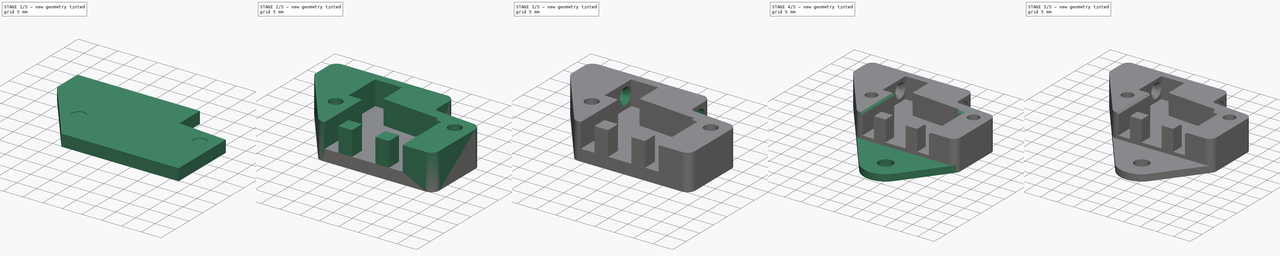
[diagram: build sequence overview — one tinted view per stage of 5, left to right]
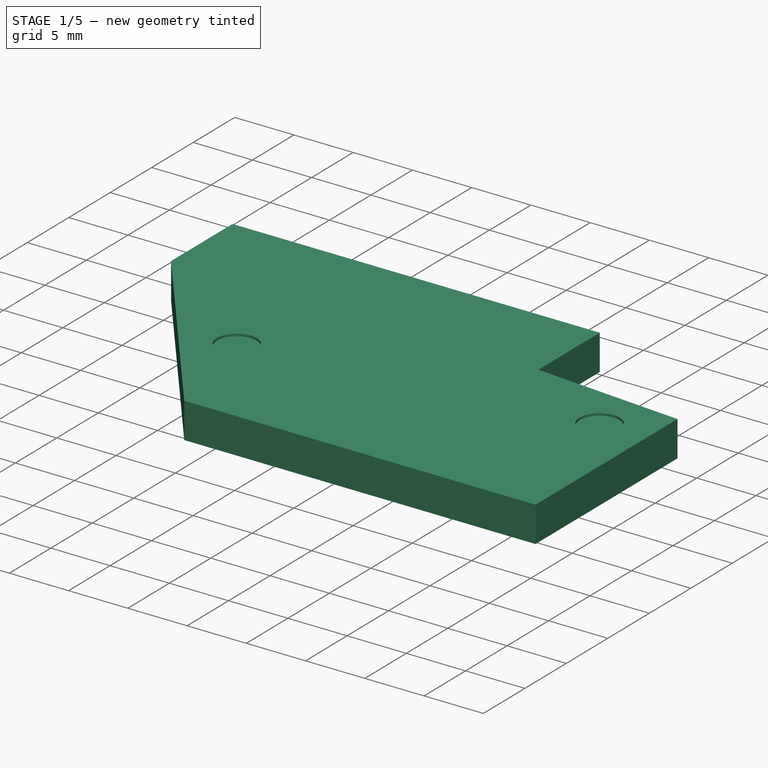
[diagram: stage 1 of 5 — iso view after this stage's code; geometry added in this stage tinted green]
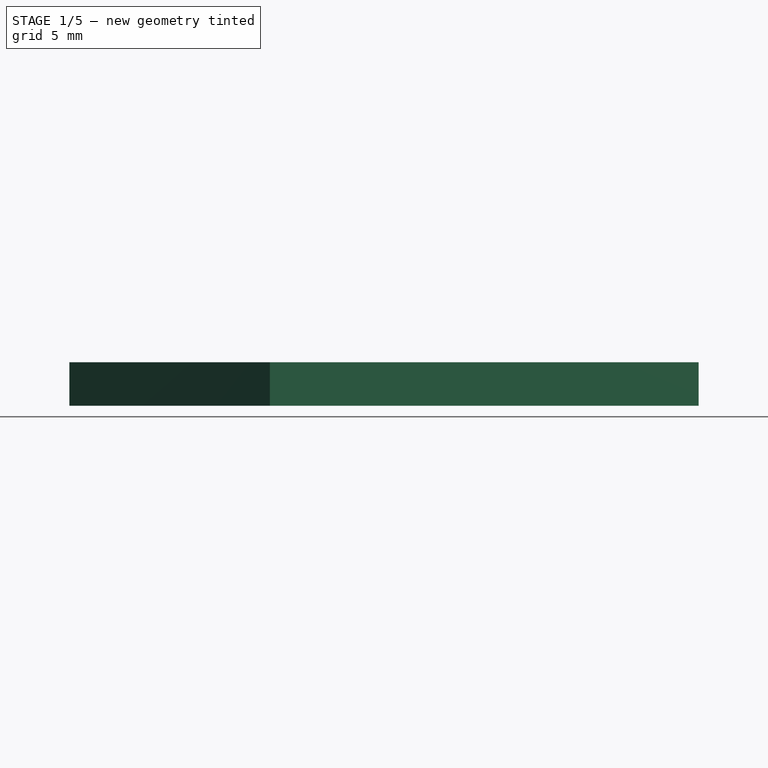
[diagram: stage 1 of 5 — front view after this stage's code; geometry added in this stage tinted green]
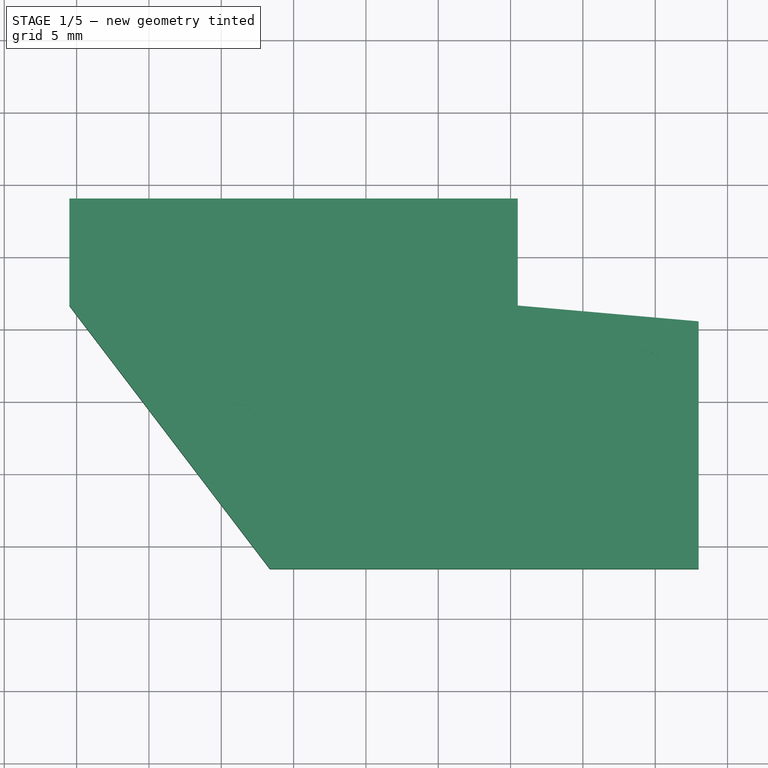
[diagram: stage 1 of 5 — top view after this stage's code; geometry added in this stage tinted green]
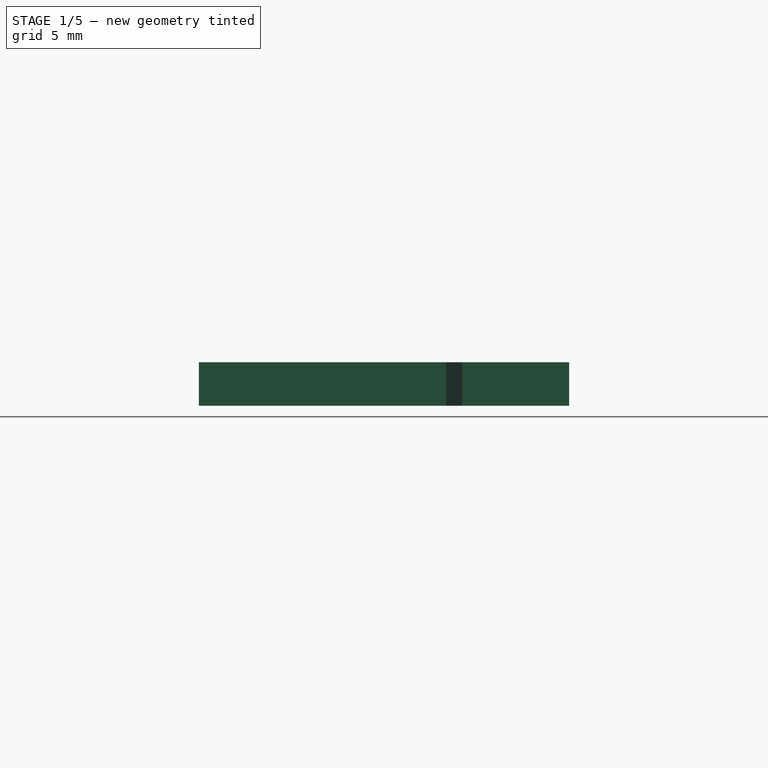
[diagram: stage 1 of 5 — right view after this stage's code; geometry added in this stage tinted green]
FCSTD DOCUMENT  (FreeCAD 0.20R29410 (Git))
Label: FilamentDetector
License: All rights reserved
LicenseURL: http://en.wikipedia.org/wiki/All_rights_reserved
objects: Sketcher::SketchObject×10, PartDesign::Pocket×5, PartDesign::Body×4, PartDesign::Pad×4, PartDesign::Fillet×4, PartDesign::ShapeBinder×3, PartDesign::Plane×2, PartDesign::Chamfer×2, PartDesign::FeatureBase×1
note: 50 computed .brp shape members not serialized (recipe doc carries the construction recipe); baked Part::Feature solids carry a one-line shape summary decoded from their .brp

FEATURE [Sketcher::SketchObject] Sketch  label="Template_XY"
  FullyConstrained = true
  MapMode = 5
  Support = -> [XY_Plane002]
  sketch-geometry (40):
    g0: LineSegment StartX=10 StartY=-7.57053 StartZ=0 EndX=10 EndY=2.67947 EndZ=0
    g1: LineSegment StartX=10 StartY=2.67947 StartZ=0 EndX=8.5 EndY=2.67947 EndZ=0
    g2: LineSegment StartX=8.5 StartY=2.67947 StartZ=0 EndX=8.5 EndY=3.67947 EndZ=0
    g3: LineSegment StartX=8.5 StartY=3.67947 StartZ=0 EndX=-6.5 EndY=4.9918 EndZ=0
    g4: LineSegment StartX=-6.5 StartY=4.9918 StartZ=0 EndX=-6.5 EndY=11.8795 EndZ=0
    g5: LineSegment StartX=-6.5 StartY=11.8795 StartZ=0 EndX=-13.5 EndY=11.8795 EndZ=0
    g6: LineSegment StartX=-13.5 StartY=11.8795 StartZ=0 EndX=-13.5 EndY=2.12947 EndZ=0
    g7: LineSegment StartX=-13.5 StartY=2.12947 StartZ=0 EndX=-10 EndY=2.12947 EndZ=0
    g8: LineSegment StartX=-10 StartY=2.12947 StartZ=0 EndX=-10 EndY=2.02947 EndZ=0
    g9: LineSegment StartX=-10 StartY=2.02947 StartZ=0 EndX=-10 EndY=-7.57053 EndZ=0
    g10: LineSegment StartX=-25.5 StartY=14.0295 StartZ=0 EndX=5.5 EndY=14.0295 EndZ=0
    g11: LineSegment StartX=18 StartY=-11.5705 StartZ=0 EndX=-11.6415 EndY=-11.5705 EndZ=0
    g12: Circle CenterX=-14 CenterY=-1.87053 CenterZ=0 NormalX=0 NormalY=0 NormalZ=1 AngleXU=0 Radius=1.68
    g13: Circle CenterX=14 CenterY=1.87053 CenterZ=0 NormalX=0 NormalY=0 NormalZ=1 AngleXU=0 Radius=1.68
    g14: LineSegment StartX=-25.5 StartY=10.8795 StartZ=0 EndX=5.5 EndY=10.8795 EndZ=0
    g15: LineSegment StartX=-25.5 StartY=8.57947 StartZ=0 EndX=5.5 EndY=8.57947 EndZ=0
    g16: LineSegment StartX=5.5 StartY=11.8295 StartZ=0 EndX=-25.5 EndY=11.8295 EndZ=0
    g17: LineSegment StartX=-25.5 StartY=7.62947 StartZ=0 EndX=5.5 EndY=7.62947 EndZ=0
    g18: LineSegment StartX=-11.6415 StartY=-11.5705 StartZ=0 EndX=-25.5 EndY=6.62947 EndZ=0
    g19: LineSegment StartX=-25.5 StartY=7.62947 StartZ=0 EndX=-25.5 EndY=14.0295 EndZ=0
    g20: GeomPoint X=-22.0734 Y=2.12947 Z=0
    g21: LineSegment StartX=18 StartY=5.53586 StartZ=0 EndX=18 EndY=-11.5705 EndZ=0
    g22: LineSegment StartX=5.5 StartY=14.0295 StartZ=0 EndX=5.5 EndY=7.62947 EndZ=0
    g23: LineSegment StartX=-25.5 StartY=9.72947 StartZ=0 EndX=-13.5 EndY=9.72947 EndZ=0
    g24: LineSegment StartX=-13.5 StartY=9.72947 StartZ=0 EndX=-6.5 EndY=9.72947 EndZ=0
    g25: LineSegment StartX=-6.5 StartY=9.72947 StartZ=0 EndX=5.5 EndY=9.72947 EndZ=0
    g26: LineSegment StartX=5.5 StartY=6.62947 StartZ=0 EndX=18 EndY=5.53586 EndZ=0
    g27: Circle CenterX=-14 CenterY=-1.87053 CenterZ=0 NormalX=0 NormalY=0 NormalZ=1 AngleXU=0 Radius=4
    g28: Circle CenterX=14 CenterY=1.87053 CenterZ=0 NormalX=0 NormalY=0 NormalZ=1 AngleXU=0 Radius=4
    g29: LineSegment StartX=-25.5 StartY=7.62947 StartZ=0 EndX=-25.5 EndY=6.62947 EndZ=0
    g30: LineSegment StartX=5.5 StartY=7.62947 StartZ=0 EndX=5.5 EndY=6.62947 EndZ=0
    g31: LineSegment StartX=-10 StartY=-7.57053 StartZ=0 EndX=-6.5 EndY=-7.57053 EndZ=0
    g32: LineSegment StartX=-6.5 StartY=-7.57053 StartZ=0 EndX=-6.5 EndY=-7.92053 EndZ=0
    g33: LineSegment StartX=-6.5 StartY=-7.92053 StartZ=0 EndX=-3 EndY=-7.92053 EndZ=0
    g34: LineSegment StartX=-3 StartY=-7.92053 StartZ=0 EndX=-3 EndY=-7.57053 EndZ=0
    g35: LineSegment StartX=-3 StartY=-7.57053 StartZ=0 EndX=3 EndY=-7.57053 EndZ=0
    g36: LineSegment StartX=3 StartY=-7.57053 StartZ=0 EndX=3 EndY=-7.92053 EndZ=0
    g37: LineSegment StartX=3 StartY=-7.92053 StartZ=0 EndX=6.5 EndY=-7.92053 EndZ=0
    g38: LineSegment StartX=6.5 StartY=-7.92053 StartZ=0 EndX=6.5 EndY=-7.57053 EndZ=0
    g39: LineSegment StartX=6.5 StartY=-7.57053 StartZ=0 EndX=10 EndY=-7.57053 EndZ=0
  constraints (117):
    c: Vertical(g0)
    c: Coincident(g0,g1)
    c: Horizontal(g1)
    c: Coincident(g1,g2)
    c: Vertical(g2)
    c: Coincident(g2,g3)
    c: Coincident(g3,g4)
    c: Vertical(g4)
    c: Coincident(g4,g5)
    c: Horizontal(g5)
    c: Coincident(g5,g6)
    c: Vertical(g6)
    c: Coincident(g6,g7)
    c: Horizontal(g7)
    c: Coincident(g7,g8)
    c: Vertical(g8)
    c: Vertical(g9)
    c: DistanceY(g0,g0) = 10.25
    c: DistanceY(g0,g2) = 1
    c: DistanceX(g1,g1) = 1.5
    c: DistanceY(g9,g9) = 9.6
    c: Horizontal(g10)
    c: Horizontal(g11)
    c: Equal(g12,g13)
    c: Radius(g12) = 1.68
    c: DistanceY(g9,g23) = 7.7
    c: Horizontal(g14)
    c: Horizontal(g15)
    c: DistanceY(g15,g14) = 2.3
    c: DistanceY(g8,g8) = 0.1
    c: DistanceY(g14,g5) = 1
    c: Angle(g3,g1) = 0.0872665
    c: DistanceX(g6,g9) = 3.5
    c: Horizontal(g16)
    c: Horizontal(g17)
    c: DistanceY(g17,g25) = 2.1
    c: Vertical(g19)
    c: PointOnObject(g23,g19)
    c: PointOnObject(g20,g18)
    c: PointOnObject(g20,g7)
    c: Vertical(g21)
    c: Vertical(g22)
    c: PointOnObject(g25,g22)
    c: PointOnObject(g14,g22)
    c: PointOnObject(g15,g22)
    c: PointOnObject(g16,g22)
    c: Coincident(g23,g24)
    c: Horizontal(g23)
    c: Coincident(g24,g25)
    c: Horizontal(g24)
    c: Horizontal(g25)
    c: PointOnObject(g23,g6)
    c: PointOnObject(g24,g4)
    c: Coincident(g17,g22)
    c: Equal(g23,g25)
    c: Parallel(g26,g3)
    c: Coincident(g27,g12)
    c: Tangent(g18,g27)
    c: Tangent(g7,g27)
    c: Tangent(g27,g9)
    c: Coincident(g28,g13)
    c: Tangent(g0,g28)
    c: Tangent(g26,g28)
    c: Tangent(g21,g28)
    c: Equal(g27,g28)
    c: Coincident(g19,g17)
    c: PointOnObject(g15,g19)
    c: Symmetric(g14,g15,g23)
    c: Symmetric(g16,g17,g23)
    c: DistanceX(g3,g1) = 15
    c: Coincident(g11,g21)
    c: Coincident(g10,g22)
    c: Coincident(g29,g17)
    c: Vertical(g29)
    c: Coincident(g30,g17)
    c: Vertical(g30)
    c: DistanceY(g30,g30) = 1
    c: Coincident(g26,g30)
    c: Equal(g29,g30)
    c: Coincident(g18,g29)
    c: Coincident(g21,g26)
    c: DistanceY(g11,g0) = 4
    c: Coincident(g10,g19)
    c: Symmetric(g12,g13,g-1)
    c: Horizontal(g31)
    c: Coincident(g31,g32)
    c: Vertical(g32)
    c: Coincident(g32,g33)
    c: Horizontal(g33)
    c: Coincident(g33,g34)
    c: Vertical(g34)
    c: Coincident(g34,g35)
    c: Horizontal(g35)
    c: Coincident(g35,g36)
    c: Vertical(g36)
    c: Coincident(g36,g37)
    c: Horizontal(g37)
    c: Coincident(g37,g38)
    c: Vertical(g38)
    c: Coincident(g38,g39)
    c: Horizontal(g39)
    c: DistanceX(g37,g0) = 3.5
    c: Equal(g31,g39)
    c: PointOnObject(g35,g39)
    c: Equal(g33,g37)
    c: Equal(g34,g36)
    c: Coincident(g11,g18)
    c: Coincident(g39,g0)
    c: Coincident(g31,g9)
    c: DistanceY(g37,g0) = 0.35
    c: PointOnObject(g31,g35)
    c: DistanceX(g9,g0) = 20
    c: Coincident(g8,g9)
    c: Radius(g27) = 4
    c: Equal(g39,g37)
    c: DistanceY(g16,g10) = 2.2
    c: DistanceX(g4,g10) = 12
FEATURE [PartDesign::Body] Body002  label="Template"
  Group = -> [Sketch]
  Origin = -> Origin002
FEATURE [PartDesign::ShapeBinder] ShapeBinder
  Support = -> [Sketch]
  TraceSupport = false
FEATURE [Sketcher::SketchObject] Sketch001  label="SB_Base"
  ExternalGeometry = -> [ShapeBinder]
  FullyConstrained = true
  MapMode = 5
  Support = -> [XY_Plane]
  sketch-geometry (7):
    g0: LineSegment StartX=-25.5 StartY=14.0295 StartZ=0 EndX=-25.5 EndY=6.62947 EndZ=0
    g1: LineSegment StartX=-25.5 StartY=6.62947 StartZ=0 EndX=-11.6415 EndY=-11.5705 EndZ=0
    g2: LineSegment StartX=-11.6415 StartY=-11.5705 StartZ=0 EndX=18 EndY=-11.5705 EndZ=0
    g3: LineSegment StartX=18 StartY=-11.5705 StartZ=0 EndX=18 EndY=5.53586 EndZ=0
    g4: LineSegment StartX=18 StartY=5.53586 StartZ=0 EndX=5.5 EndY=6.62947 EndZ=0
    g5: LineSegment StartX=5.5 StartY=6.62947 StartZ=0 EndX=5.5 EndY=14.0295 EndZ=0
    g6: LineSegment StartX=5.5 StartY=14.0295 StartZ=0 EndX=-25.5 EndY=14.0295 EndZ=0
  constraints (14):
    c: Coincident(g0,g1)
    c: Coincident(g1,g2)
    c: Coincident(g2,g3)
    c: Coincident(g3,g4)
    c: Coincident(g4,g5)
    c: Coincident(g5,g6)
    c: Coincident(g6,g0)
    c: Coincident(g5,g-3)
    c: Coincident(g4,g-6)
    c: Coincident(g3,g-6)
    c: Coincident(g2,g-5)
    c: Coincident(g1,g-4)
    c: Coincident(g0,g-4)
    c: Coincident(g0,g-3)
FEATURE [PartDesign::Pad] Pad  label="SB_Base_"
  Direction = (0,0,1)
  Length = 3
  Length2 = 100
  Profile = -> Sketch001
  ReferenceAxis = -> Sketch001 [N_Axis]
  Type = 0
FEATURE [Sketcher::SketchObject] Sketch003  label="SB_Filament"
  ExternalGeometry = -> [ShapeBinder]
  FullyConstrained = true
  MapMode = 5
  Placement = pos=(0,0,0) rot=(0.57735,0.57735,0.57735;2.0944rad)
  Support = -> [YZ_Plane]
  expr: Constraints[6] = <<SB_Bay_>>.Length / 2 + <<SB_Base_>>.Length
  sketch-geometry (3):
    g0: Circle CenterX=9.72947 CenterY=6.1 CenterZ=0 NormalX=0 NormalY=0 NormalZ=1 AngleXU=0 Radius=1.15
    g1: LineSegment StartX=9.72947 StartY=3e-15 StartZ=0 EndX=9.72947 EndY=6.1 EndZ=0
    g2: LineSegment StartX=10.8795 StartY=6.1 StartZ=0 EndX=10.8795 EndY=6.2e-15 EndZ=0
  constraints (7):
    c: Coincident(g2,g-4)
    c: Coincident(g1,g-3)
    c: Vertical(g1)
    c: Vertical(g2)
    c: Tangent(g2,g0) = 1.5708
    c: Coincident(g0,g1)
    c: DistanceY(g1,g0) = 6.1
FEATURE [Sketcher::SketchObject] Sketch004  label="SB_Bay"
  AttachmentOffset = pos=(0,0,3) rot=(0,0,1;0rad)
  ExternalGeometry = -> [ShapeBinder]
  FullyConstrained = true
  MapMode = 5
  Placement = pos=(0,0,3) rot=(0,0,1;0rad)
  Support = -> [XY_Plane]
  expr: .AttachmentOffset.Base.z = <<SB_Base>>.AttachmentOffset.Base.z + <<SB_Base_>>.Length
  sketch-geometry (27):
    g0: LineSegment StartX=-25.5 StartY=14.0295 StartZ=0 EndX=-25.5 EndY=6.62947 EndZ=0
    g1: LineSegment StartX=-25.5 StartY=6.62947 StartZ=0 EndX=-11.6415 EndY=-11.5705 EndZ=0
    g2: LineSegment StartX=-10 StartY=2.12947 StartZ=0 EndX=-13.5 EndY=2.12947 EndZ=0
    g3: LineSegment StartX=-13.5 StartY=2.12947 StartZ=0 EndX=-13.5 EndY=11.8795 EndZ=0
    g4: LineSegment StartX=-13.5 StartY=11.8795 StartZ=0 EndX=-6.5 EndY=11.8795 EndZ=0
    g5: LineSegment StartX=-6.5 StartY=11.8795 StartZ=0 EndX=-6.5 EndY=4.9918 EndZ=0
    g6: LineSegment StartX=-6.5 StartY=4.9918 StartZ=0 EndX=8.5 EndY=3.67947 EndZ=0
    g7: LineSegment StartX=8.5 StartY=3.67947 StartZ=0 EndX=8.5 EndY=2.67947 EndZ=0
    g8: LineSegment StartX=8.5 StartY=2.67947 StartZ=0 EndX=10 EndY=2.67947 EndZ=0
    g9: LineSegment StartX=10 StartY=2.67947 StartZ=0 EndX=10 EndY=-11.5705 EndZ=0
    g10: LineSegment StartX=10 StartY=-11.5705 StartZ=0 EndX=18 EndY=-11.5705 EndZ=0
    g11: LineSegment StartX=18 StartY=-11.5705 StartZ=0 EndX=18 EndY=5.53586 EndZ=0
    g12: LineSegment StartX=18 StartY=5.53586 StartZ=0 EndX=5.5 EndY=6.62947 EndZ=0
    g13: LineSegment StartX=5.5 StartY=6.62947 StartZ=0 EndX=5.5 EndY=14.0295 EndZ=0
    g14: LineSegment StartX=5.5 StartY=14.0295 StartZ=0 EndX=-25.5 EndY=14.0295 EndZ=0
    g15: Circle CenterX=-14 CenterY=-1.87053 CenterZ=0 NormalX=0 NormalY=0 NormalZ=1 AngleXU=0 Radius=1.68
    g16: Circle CenterX=14 CenterY=1.87053 CenterZ=0 NormalX=0 NormalY=0 NormalZ=1 AngleXU=0 Radius=1.68
    g17: LineSegment StartX=-6.5 StartY=-7.92053 StartZ=0 EndX=-6.5 EndY=-11.5705 EndZ=0
    g18: LineSegment StartX=-6.5 StartY=-11.5705 StartZ=0 EndX=-3 EndY=-11.5705 EndZ=0
    g19: LineSegment StartX=-3 StartY=-11.5705 StartZ=0 EndX=-3 EndY=-7.92053 EndZ=0
    g20: LineSegment StartX=-3 StartY=-7.92053 StartZ=0 EndX=-6.5 EndY=-7.92053 EndZ=0
    g21: LineSegment StartX=3 StartY=-7.92053 StartZ=0 EndX=3 EndY=-11.5705 EndZ=0
    g22: LineSegment StartX=3 StartY=-11.5705 StartZ=0 EndX=6.5 EndY=-11.5705 EndZ=0
    g23: LineSegment StartX=6.5 StartY=-11.5705 StartZ=0 EndX=6.5 EndY=-7.92053 EndZ=0
    g24: LineSegment StartX=6.5 StartY=-7.92053 StartZ=0 EndX=3 EndY=-7.92053 EndZ=0
    g25: LineSegment StartX=-10 StartY=2.12947 StartZ=0 EndX=-10 EndY=-11.5705 EndZ=0
    g26: LineSegment StartX=-10 StartY=-11.5705 StartZ=0 EndX=-11.6415 EndY=-11.5705 EndZ=0
  constraints (60):
    c: Coincident(g0,g1)
    c: Coincident(g2,g3)
    c: Coincident(g3,g4)
    c: Coincident(g4,g5)
    c: Coincident(g5,g6)
    c: Coincident(g6,g7)
    c: Coincident(g7,g8)
    c: Coincident(g8,g9)
    c: Coincident(g10,g11)
    c: Coincident(g11,g12)
    c: Coincident(g12,g13)
    c: Coincident(g13,g14)
    c: Coincident(g14,g0)
    c: Coincident(g9,g10)
    c: Coincident(g13,g-5)
    c: Coincident(g12,g-8)
    c: Coincident(g11,g-8)
    c: Coincident(g10,g-3)
    c: Coincident(g1,g-3)
    c: Coincident(g0,g-4)
    c: Coincident(g0,g-5)
    c: Equal(g-6,g15)
    c: Equal(g-7,g16)
    c: Coincident(g-7,g16)
    c: Coincident(g-6,g15)
    c: PointOnObject(g9,g-3)
    c: Coincident(g-12,g8)
    c: PointOnObject(g-12,g9)
    c: Coincident(g7,g-11)
    c: Coincident(g6,g-11)
    c: Coincident(g5,g-10)
    c: Coincident(g4,g-10)
    c: Coincident(g3,g-9)
    c: Coincident(g2,g-9)
    c: Coincident(g-14,g17)
    c: PointOnObject(g17,g-3)
    c: Vertical(g17)
    c: Coincident(g17,g18)
    c: PointOnObject(g18,g-3)
    c: Coincident(g18,g19)
    c: Coincident(g19,g-14)
    c: Vertical(g19)
    c: Coincident(g19,g20)
    c: Coincident(g20,g17)
    c: Coincident(g-15,g21)
    c: PointOnObject(g21,g-3)
    c: Vertical(g21)
    c: Coincident(g21,g22)
    c: PointOnObject(g22,g-3)
    c: Coincident(g22,g23)
    c: Coincident(g23,g-15)
    c: Coincident(g23,g24)
    c: Coincident(g24,g21)
    c: Vertical(g23)
    c: Coincident(g25,g2)
    c: PointOnObject(g25,g-3)
    c: Coincident(g26,g25)
    c: Coincident(g26,g1)
    c: Coincident(g2,g-13)
    c: PointOnObject(g-13,g25)
FEATURE [PartDesign::Plane] DatumPlane
  Length = 60
  MapMode = 1
  Placement = pos=(5.5,9.72947,0) rot=(0.57735,-0.57735,-0.57735;2.0944rad)
  ResizeMode = 0
  Support = -> [ShapeBinder]
  Width = 60
FEATURE [Sketcher::SketchObject] Sketch005  label="SB_Tube_In"
  ExternalGeometry = -> [ShapeBinder]
  FullyConstrained = true
  MapMode = 5
  Placement = pos=(5.5,9.72947,0) rot=(0.57735,-0.57735,-0.57735;2.0944rad)
  Support = -> [DatumPlane]
  expr: Constraints[1] = <<SB_Bay_>>.Length / 2 + <<SB_Base_>>.Length
  sketch-geometry (2):
    g0: Circle CenterX=-1.5672e-12 CenterY=6.1 CenterZ=0 NormalX=0 NormalY=0 NormalZ=1 AngleXU=0 Radius=2.1
    g1: LineSegment StartX=-2.1 StartY=0 StartZ=0 EndX=-2.1 EndY=6.1 EndZ=0
  constraints (5):
    c: PointOnObject(g0,g-2)
    c: DistanceY(g-1,g0) = 6.1
    c: Vertical(g1)
    c: Tangent(g1,g0) = 1.5708
    c: Coincident(g1,g-3)
FEATURE [PartDesign::Plane] DatumPlane001
  Length = 60
  MapMode = 7
  Placement = pos=(-25.5,9.72947,0) rot=(0.57735,-0.57735,-0.57735;2.0944rad)
  ResizeMode = 0
  Support = -> [ShapeBinder]
  Width = 60
FEATURE [Sketcher::SketchObject] Sketch006  label="SB_Tube_Out"
  ExternalGeometry = -> [ShapeBinder]
  FullyConstrained = true
  MapMode = 5
  Placement = pos=(-25.5,9.72947,0) rot=(0.57735,-0.57735,-0.57735;2.0944rad)
  Support = -> [DatumPlane001]
  expr: Constraints[1] = <<SB_Bay_>>.Length / 2 + <<SB_Base_>>.Length
  sketch-geometry (2):
    g0: Circle CenterX=-1.5672e-12 CenterY=6.1 CenterZ=0 NormalX=0 NormalY=0 NormalZ=1 AngleXU=0 Radius=2.1
    g1: LineSegment StartX=-2.1 StartY=0 StartZ=0 EndX=-2.1 EndY=6.1 EndZ=0
  constraints (5):
    c: PointOnObject(g0,g-2)
    c: DistanceY(g-1,g0) = 6.1
    c: Vertical(g1)
    c: Tangent(g1,g0) = 1.5708
    c: Coincident(g1,g-3)
FEATURE [Sketcher::SketchObject] Sketch008  label="SB_Nuts"
  ExternalGeometry = -> [ShapeBinder]
  FullyConstrained = true
  MapMode = 5
  Support = -> [XY_Plane]
  sketch-geometry (14):
    g0: LineSegment StartX=10.6 StartY=1.87053 StartZ=0 EndX=12.3 EndY=-1.07395 EndZ=0
    g1: LineSegment StartX=12.3 StartY=-1.07395 StartZ=0 EndX=15.7 EndY=-1.07395 EndZ=0
    g2: LineSegment StartX=15.7 StartY=-1.07395 StartZ=0 EndX=17.4 EndY=1.87053 EndZ=0
    g3: LineSegment StartX=17.4 StartY=1.87053 StartZ=0 EndX=15.7 EndY=4.81502 EndZ=0
    g4: LineSegment StartX=15.7 StartY=4.81502 StartZ=0 EndX=12.3 EndY=4.81502 EndZ=0
    g5: LineSegment StartX=12.3 StartY=4.81502 StartZ=0 EndX=10.6 EndY=1.87053 EndZ=0
    g6: Circle CenterX=14 CenterY=1.87053 CenterZ=0 NormalX=0 NormalY=0 NormalZ=1 AngleXU=0 Radius=3.4
    g7: LineSegment StartX=-12.3 StartY=1.07395 StartZ=0 EndX=-15.7 EndY=1.07395 EndZ=0
    g8: LineSegment StartX=-15.7 StartY=1.07395 StartZ=0 EndX=-17.4 EndY=-1.87053 EndZ=0
    g9: LineSegment StartX=-17.4 StartY=-1.87053 StartZ=0 EndX=-15.7 EndY=-4.81502 EndZ=0
    g10: LineSegment StartX=-15.7 StartY=-4.81502 StartZ=0 EndX=-12.3 EndY=-4.81502 EndZ=0
    g11: LineSegment StartX=-12.3 StartY=-4.81502 StartZ=0 EndX=-10.6 EndY=-1.87053 EndZ=0
    g12: LineSegment StartX=-10.6 StartY=-1.87053 StartZ=0 EndX=-12.3 EndY=1.07395 EndZ=0
    g13: Circle CenterX=-14 CenterY=-1.87053 CenterZ=0 NormalX=0 NormalY=0 NormalZ=1 AngleXU=0 Radius=3.4
  constraints (32):
    c: Coincident(g0,g1)
    c: Coincident(g1,g2)
    c: Coincident(g2,g3)
    c: Coincident(g3,g4)
    c: Coincident(g4,g5)
    c: Coincident(g5,g0)
    c: Equal(g0, g1-g5) x5
    c: PointOnObject(g0,g6)
    c: PointOnObject(g1,g6)
    c: PointOnObject(g2,g6)
    c: PointOnObject(g3,g6)
    c: PointOnObject(g4,g6)
    c: PointOnObject(g5,g6)
    c: Radius(g6) = 3.4
    c: Coincident(g7,g8)
    c: Coincident(g8,g9)
    c: Coincident(g9,g10)
    c: Coincident(g10,g11)
    c: Coincident(g11,g12)
    c: Coincident(g12,g7)
    c: Equal(g7, g8-g12) x5
    c: PointOnObject(g7,g13)
    c: PointOnObject(g8,g13)
    c: PointOnObject(g9,g13)
    c: PointOnObject(g10,g13)
    c: PointOnObject(g11,g13)
    c: PointOnObject(g12,g13)
    c: Equal(g13,g6)
    c: Horizontal(g7)
    c: Horizontal(g4)
    c: Coincident(g6,g-4)
    c: Coincident(g13,g-3)
FEATURE [PartDesign::Pocket] Pocket003  label="SB_Nuts_"
  BaseFeature = -> Pad
  Direction = (0,0,-1)
  Length = 2.6
  Length2 = 5
  Profile = -> Sketch008
  ReferenceAxis = -> Sketch008 [N_Axis]
  Reversed = true
  Type = 0
  expr: Length = <<SB_Base_>>.Length - 0.4mm
FEATURE [Sketcher::SketchObject] Sketch009  label="SB_Screws"
  AttachmentOffset = pos=(0,0,3) rot=(0,0,1;0rad)
  ExternalGeometry = -> [ShapeBinder]
  FullyConstrained = true
  MapMode = 5
  Placement = pos=(0,0,3) rot=(0,0,1;0rad)
  Support = -> [XY_Plane]
  expr: .AttachmentOffset.Base.z = <<SB_Base>>.AttachmentOffset.Base.z + <<SB_Base_>>.Length
  sketch-geometry (2):
    g0: Circle CenterX=14 CenterY=1.87053 CenterZ=0 NormalX=0 NormalY=0 NormalZ=1 AngleXU=0 Radius=1.68
    g1: Circle CenterX=-14 CenterY=-1.87053 CenterZ=0 NormalX=0 NormalY=0 NormalZ=1 AngleXU=0 Radius=1.68
  constraints (4):
    c: Equal(g-4,g1)
    c: Equal(g-3,g0)
    c: Coincident(g-3,g0)
    c: Coincident(g-4,g1)
FEATURE [PartDesign::Pocket] Pocket004  label="SB_Screws_"
  BaseFeature = -> Pocket003
  Direction = (0,0,-1)
  Length = 0.2
  Length2 = 5
  Profile = -> Sketch009
  ReferenceAxis = -> Sketch009 [N_Axis]
  Type = 0
  expr: Length = <<SB_Base_>>.Length - <<SB_Nuts_>>.Length - 0.2mm
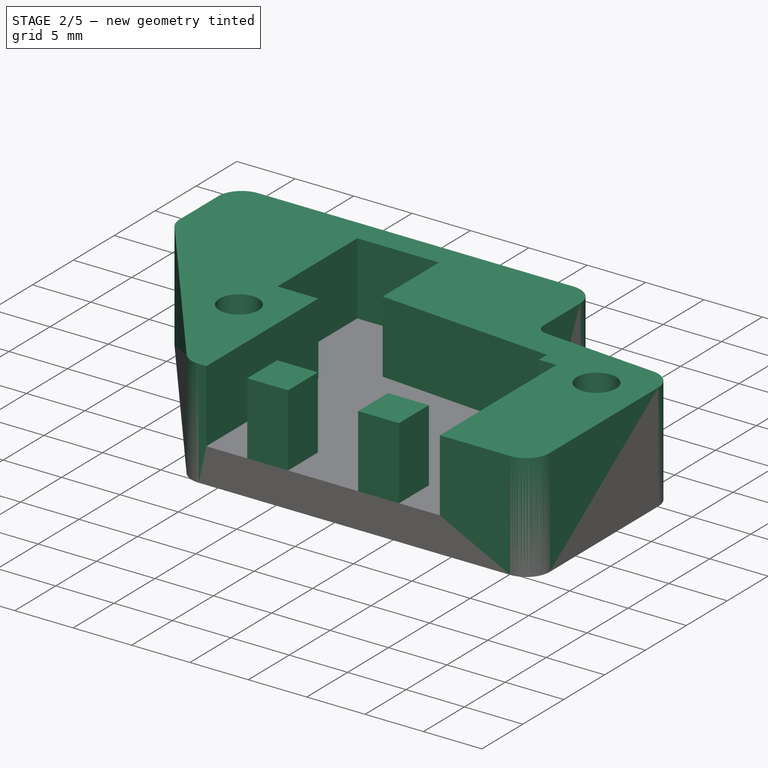
[diagram: stage 2 of 5 — iso view after this stage's code; geometry added in this stage tinted green]
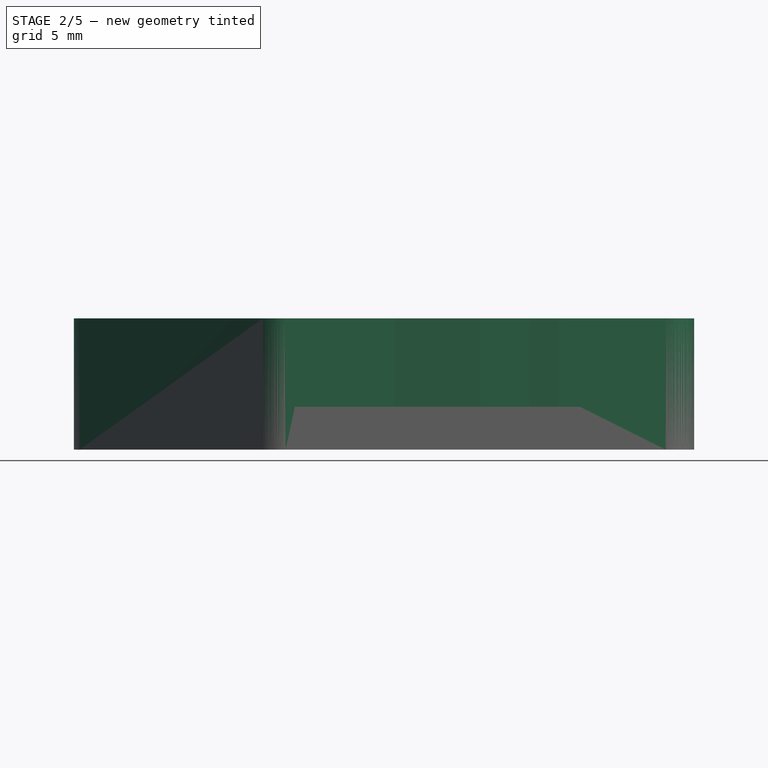
[diagram: stage 2 of 5 — front view after this stage's code; geometry added in this stage tinted green]
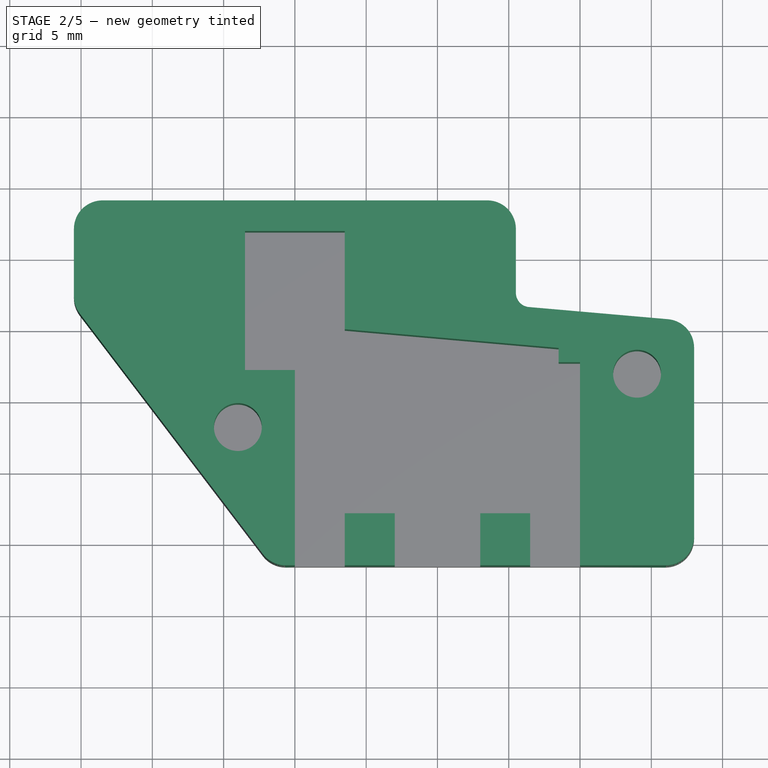
[diagram: stage 2 of 5 — top view after this stage's code; geometry added in this stage tinted green]
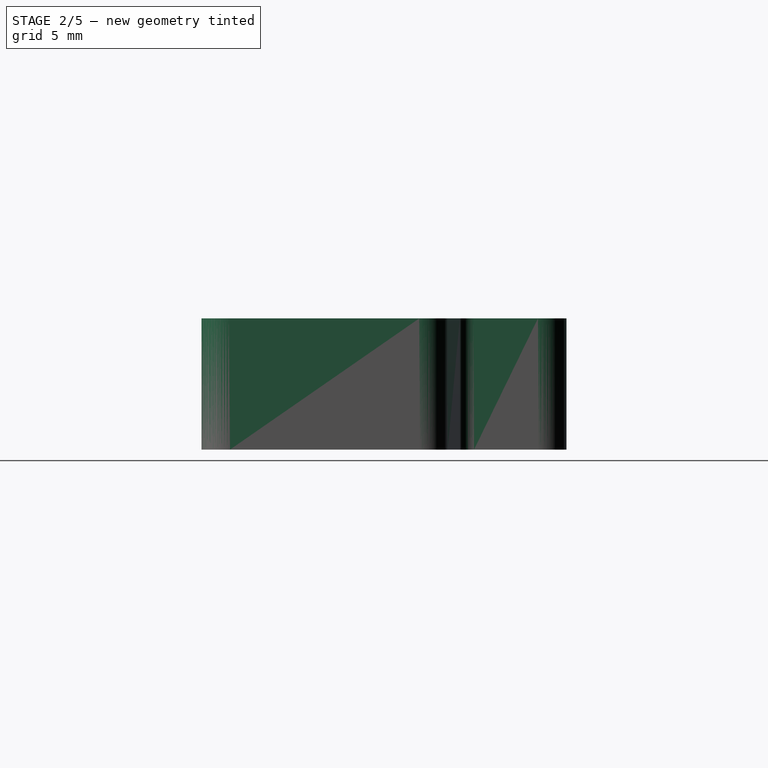
[diagram: stage 2 of 5 — right view after this stage's code; geometry added in this stage tinted green]
FEATURE [PartDesign::Pad] Pad001  label="SB_Bay_"
  BaseFeature = -> Pocket004
  Direction = (0,0,1)
  Length = 6.2
  Length2 = 100
  Profile = -> Sketch004
  Refine = true
  Type = 0
FEATURE [PartDesign::Fillet] Fillet
  Base = -> Pad001 [Edge44,Edge46,Edge110,Edge112,Edge109,Edge113]
  BaseFeature = -> Pad001
  Radius = 2
  SupportTransform = false
  UseAllEdges = false
FEATURE [PartDesign::Fillet] Fillet001
  Base = -> Fillet [Edge41]
  BaseFeature = -> Fillet
  Radius = 1
  SupportTransform = false
  UseAllEdges = false
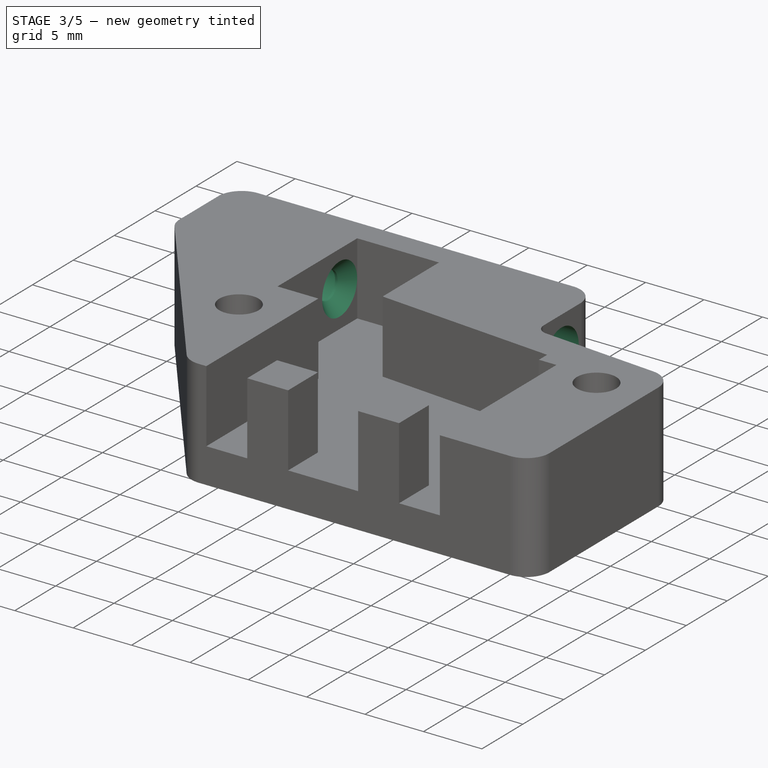
[diagram: stage 3 of 5 — iso view after this stage's code; geometry added in this stage tinted green]
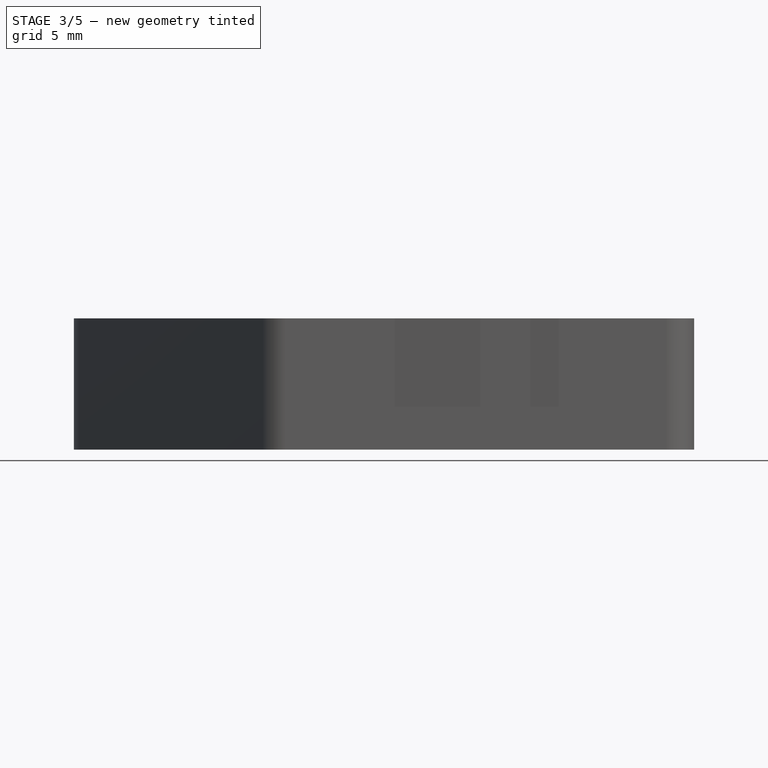
[diagram: stage 3 of 5 — front view after this stage's code; geometry added in this stage tinted green]
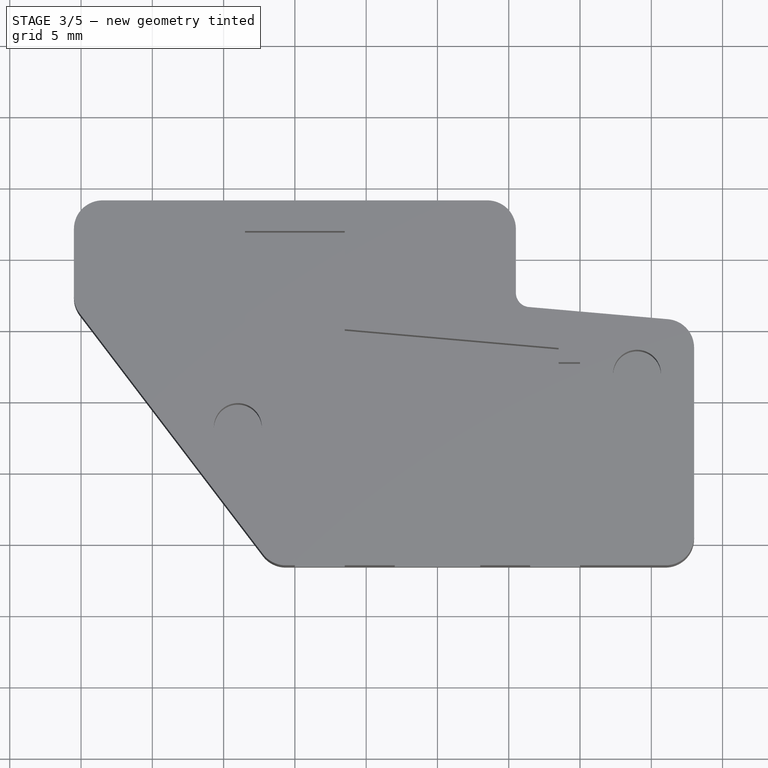
[diagram: stage 3 of 5 — top view after this stage's code; geometry added in this stage tinted green]
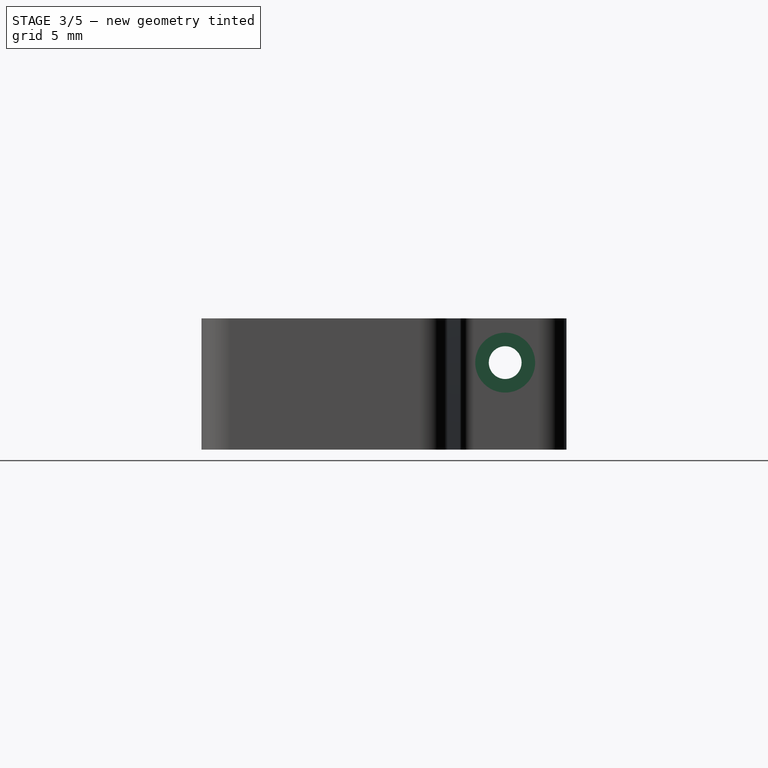
[diagram: stage 3 of 5 — right view after this stage's code; geometry added in this stage tinted green]
FEATURE [PartDesign::Pocket] Pocket  label="SB_Filament_"
  BaseFeature = -> Fillet001
  Direction = (-1,2e-16,-3e-16)
  Length = 5
  Length2 = 100
  Midplane = true
  Profile = -> Sketch003
  Type = 1
FEATURE [PartDesign::Chamfer] Chamfer
  Angle = 24
  Base = -> Pocket [Edge105,Edge106]
  BaseFeature = -> Pocket
  ChamferType = 0
  FlipDirection = false
  Size = 0.99
  Size2 = 2
  SupportTransform = false
  UseAllEdges = false
FEATURE [PartDesign::Pocket] Pocket001  label="SB_Tube_In_"
  BaseFeature = -> Chamfer
  Direction = (1,0,0)
  Length = 10.8
  Length2 = 100
  Profile = -> Sketch005
  Reversed = true
  Type = 0
FEATURE [PartDesign::Pocket] Pocket002  label="SB_Tube_Out_"
  BaseFeature = -> Pocket001
  Direction = (1,0,0)
  Length = 10.8
  Length2 = 100
  Profile = -> Sketch006
  Type = 0
  expr: Length = <<SB_Tube_In_>>.Length
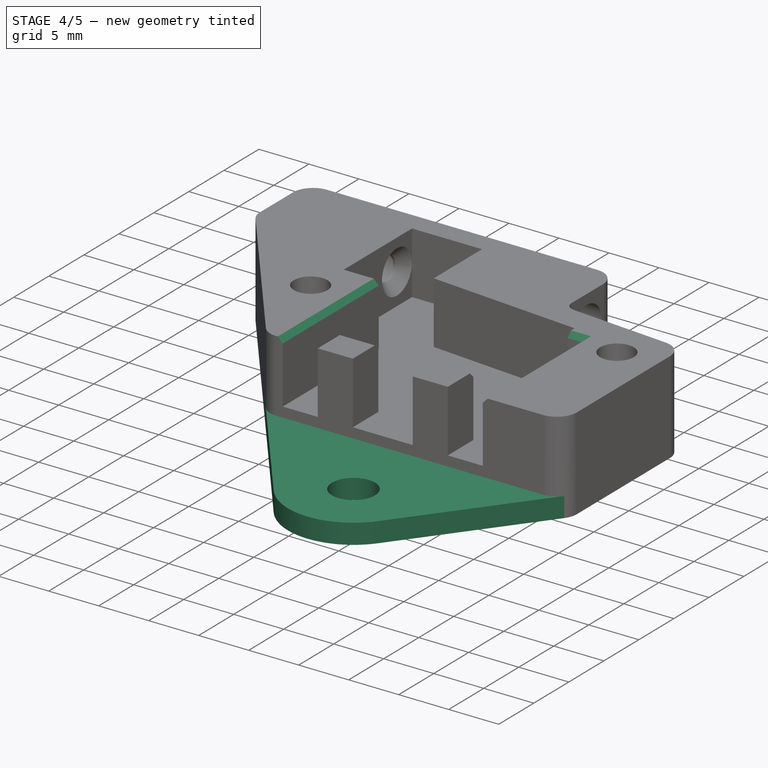
[diagram: stage 4 of 5 — iso view after this stage's code; geometry added in this stage tinted green]
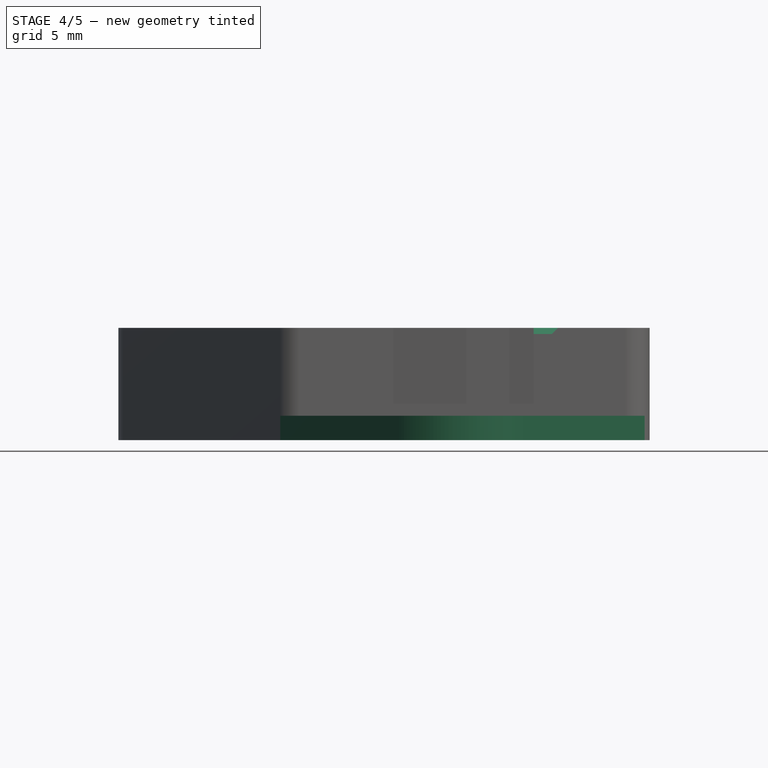
[diagram: stage 4 of 5 — front view after this stage's code; geometry added in this stage tinted green]
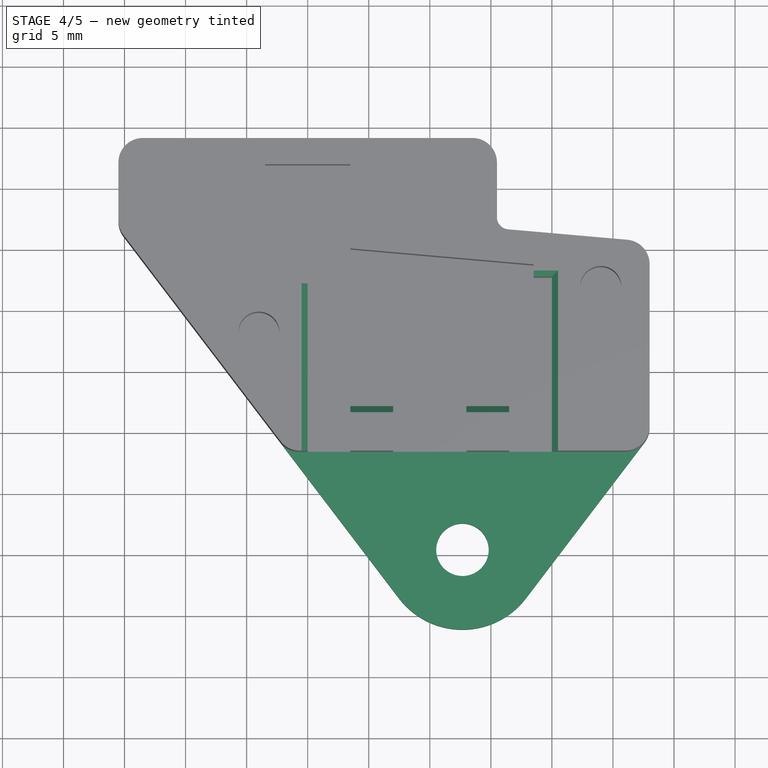
[diagram: stage 4 of 5 — top view after this stage's code; geometry added in this stage tinted green]
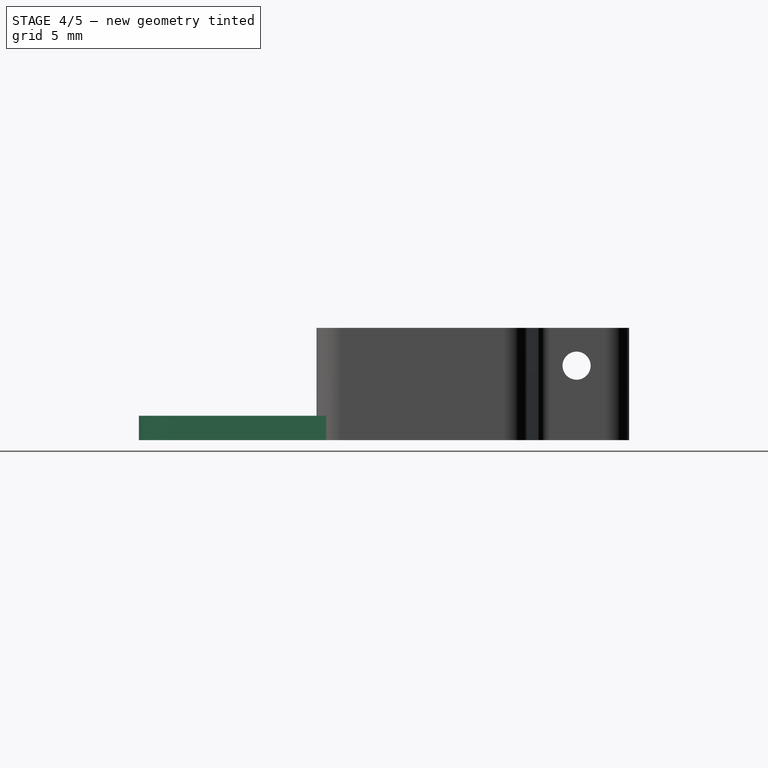
[diagram: stage 4 of 5 — right view after this stage's code; geometry added in this stage tinted green]
FEATURE [PartDesign::Chamfer] Chamfer001
  Angle = 45
  Base = -> Pocket002 [Edge54,Edge45,Edge47,Edge105,Edge110]
  BaseFeature = -> Pocket002
  ChamferType = 0
  FlipDirection = false
  Size = 0.5
  Size2 = 1
  SupportTransform = false
  UseAllEdges = false
FEATURE [PartDesign::Body] Body001  label="Lid"
  Group = -> [ShapeBinder001,Sketch007,Pad002,Fillet002,Fillet003]
  Origin = -> Origin001
  Tip = -> Fillet003
FEATURE [PartDesign::FeatureBase] Clone
  BaseFeature = -> Body
FEATURE [PartDesign::ShapeBinder] ShapeBinder002
  Support = -> [Sketch]
  TraceSupport = false
FEATURE [Sketcher::SketchObject] Sketch010
  ExternalGeometry = -> [ShapeBinder002]
  FullyConstrained = true
  MapMode = 5
  Support = -> [XY_Plane003]
  sketch-geometry (7):
    g0: ArcOfCircle CenterX=16 CenterY=-9.57053 CenterZ=0 NormalX=0 NormalY=0 NormalZ=1 AngleXU=0 Radius=2 StartAngle=4.71239 EndAngle=6.28319
    g1: ArcOfCircle CenterX=-10.6506 CenterY=-9.57053 CenterZ=0 NormalX=0 NormalY=0 NormalZ=1 AngleXU=0 Radius=2 StartAngle=3.79239 EndAngle=4.71239
    g2: LineSegment StartX=-12.2418 StartY=-10.7822 StartZ=0 EndX=-2.53133 EndY=-23.5347 EndZ=0
    g3: LineSegment StartX=7.88073 StartY=-23.5347 StartZ=0 EndX=17.5912 EndY=-10.7822 EndZ=0
    g4: LineSegment StartX=-12.2418 StartY=-10.7822 StartZ=0 EndX=17.5912 EndY=-10.7822 EndZ=0
    g5: ArcOfCircle CenterX=2.6747 CenterY=-19.5705 CenterZ=0 NormalX=0 NormalY=0 NormalZ=1 AngleXU=0 Radius=6.54349 StartAngle=3.79239 EndAngle=5.63239
    g6: Circle CenterX=2.6747 CenterY=-19.5705 CenterZ=0 NormalX=0 NormalY=0 NormalZ=1 AngleXU=0 Radius=2.15
  constraints (18):
    c: Radius(g0) = 2
    c: Tangent(g0,g-3) = 1.5708
    c: Tangent(g0,g-4) = 1.5708
    c: Equal(g0,g1)
    c: Tangent(g1,g-5) = 1.5708
    c: Tangent(g1,g-3) = 1.5708
    c: Coincident(g2,g1)
    c: Tangent(g3,g0) = -1.5708
    c: Parallel(g2,g-5)
    c: Equal(g3,g2)
    c: Coincident(g4,g1)
    c: Coincident(g4,g3)
    c: Tangent(g2,g5) = -1.5708
    c: Tangent(g3,g5) = -1.5708
    c: Coincident(g6,g5)
    c: Radius(g6) = 2.15
    c: DistanceY(g-5) = -11.5705
    c: DistanceY(g5,g-5) = 8
FEATURE [PartDesign::Pad] Pad003
  BaseFeature = -> Clone
  Direction = (0,0,1)
  Length = 2
  Length2 = 10
  Profile = -> Sketch010
  ReferenceAxis = -> Sketch010 [N_Axis]
  Refine = true
  Type = 0
FEATURE [PartDesign::Body] Body003  label="FixSwitchBay"
  Group = -> [Clone,ShapeBinder002,Sketch010,Pad003]
  Origin = -> Origin003
  Tip = -> Pad003
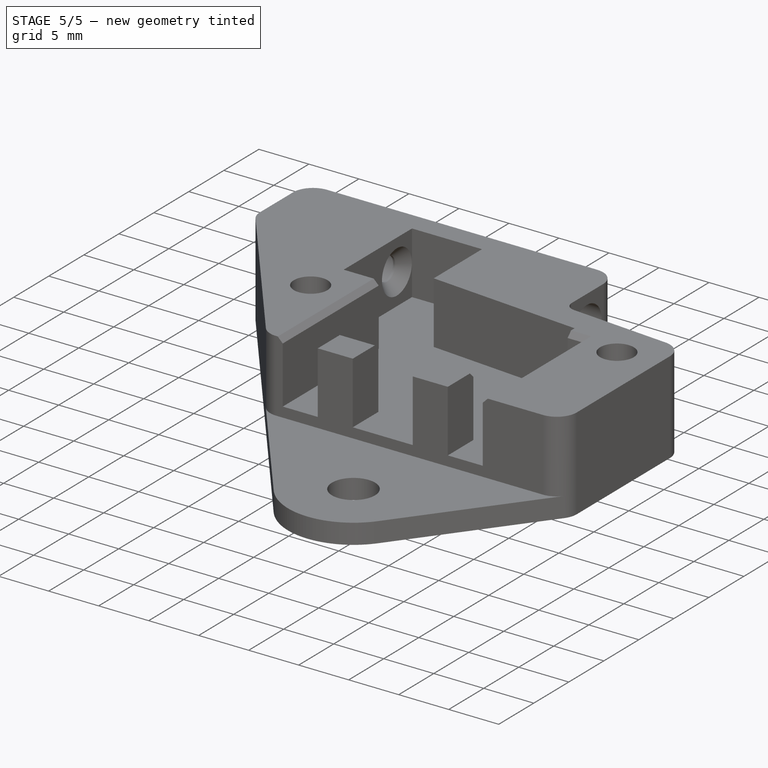
[diagram: stage 5 of 5 — iso view after this stage's code; geometry added in this stage tinted green]
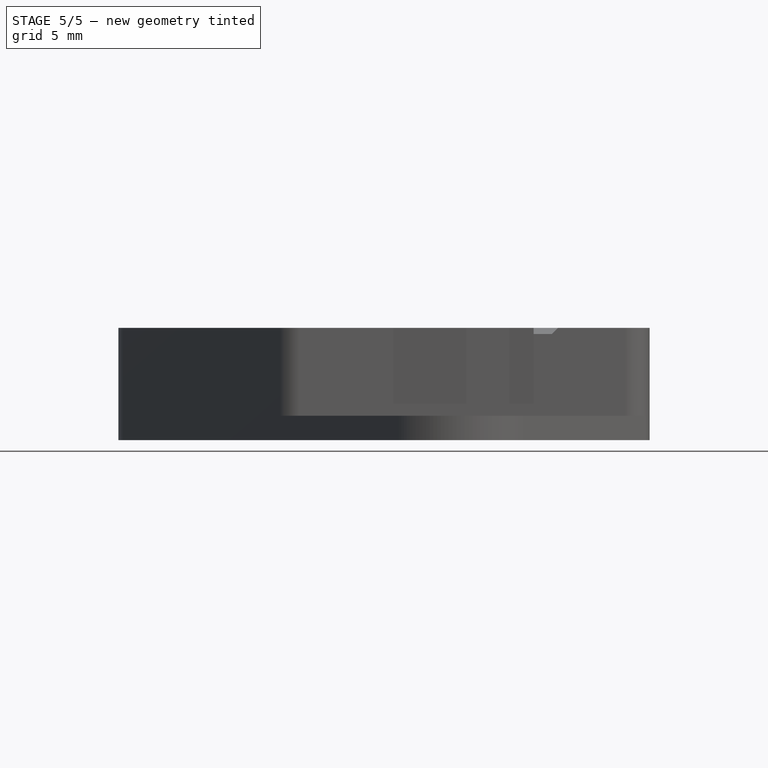
[diagram: stage 5 of 5 — front view after this stage's code; geometry added in this stage tinted green]
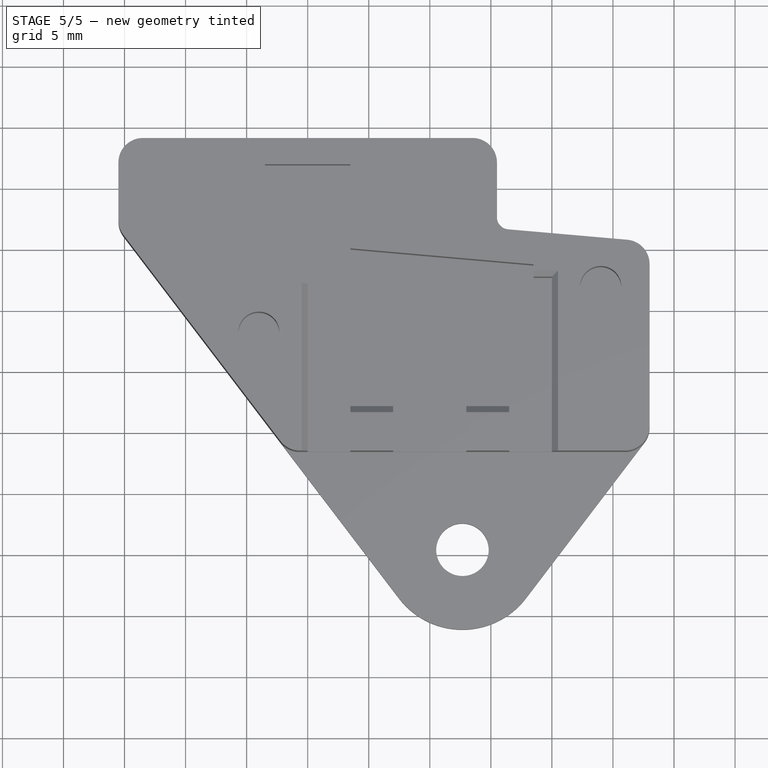
[diagram: stage 5 of 5 — top view after this stage's code; geometry added in this stage tinted green]
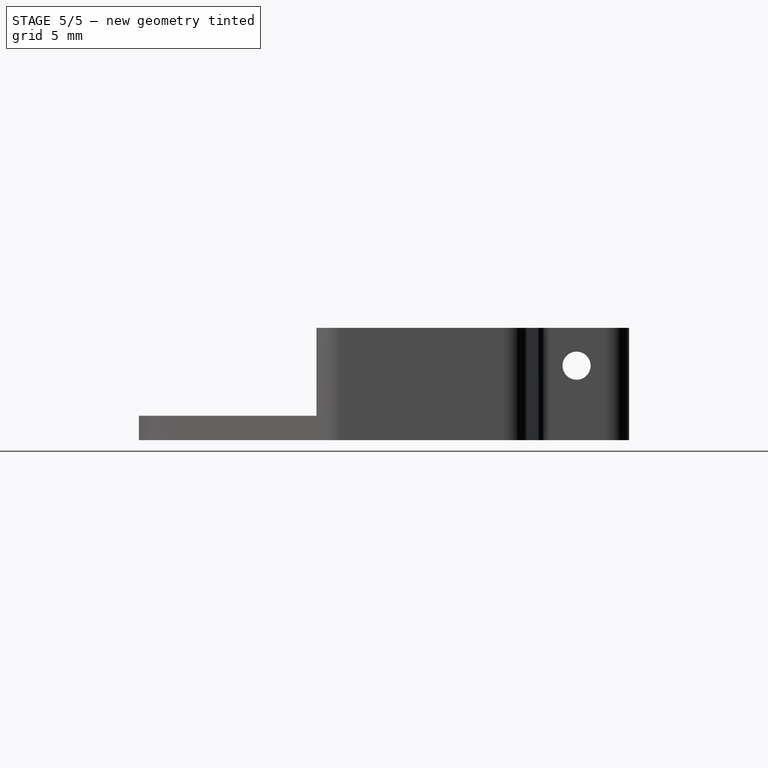
[diagram: stage 5 of 5 — right view after this stage's code; geometry added in this stage tinted green]
FEATURE [PartDesign::ShapeBinder] ShapeBinder001
  Support = -> [Sketch]
  TraceSupport = false
FEATURE [Sketcher::SketchObject] Sketch007
  ExternalGeometry = -> [ShapeBinder001]
  FullyConstrained = true
  MapMode = 5
  Support = -> [XY_Plane001]
  sketch-geometry (9):
    g0: LineSegment StartX=-25.5 StartY=14.0295 StartZ=0 EndX=-25.5 EndY=6.62947 EndZ=0
    g1: LineSegment StartX=-25.5 StartY=6.62947 StartZ=0 EndX=-11.6415 EndY=-11.5705 EndZ=0
    g2: LineSegment StartX=-11.6415 StartY=-11.5705 StartZ=0 EndX=18 EndY=-11.5705 EndZ=0
    g3: LineSegment StartX=18 StartY=-11.5705 StartZ=0 EndX=18 EndY=5.53586 EndZ=0
    g4: LineSegment StartX=18 StartY=5.53586 StartZ=0 EndX=5.5 EndY=6.62947 EndZ=0
    g5: LineSegment StartX=5.5 StartY=6.62947 StartZ=0 EndX=5.5 EndY=14.0295 EndZ=0
    g6: LineSegment StartX=5.5 StartY=14.0295 StartZ=0 EndX=-25.5 EndY=14.0295 EndZ=0
    g7: Circle CenterX=-14 CenterY=-1.87053 CenterZ=0 NormalX=0 NormalY=0 NormalZ=1 AngleXU=0 Radius=1.68
    g8: Circle CenterX=14 CenterY=1.87053 CenterZ=0 NormalX=0 NormalY=0 NormalZ=1 AngleXU=0 Radius=1.68
  constraints (18):
    c: Coincident(g-3,g0)
    c: Coincident(g0,g-4)
    c: Coincident(g0,g1)
    c: Coincident(g1,g-4)
    c: Coincident(g1,g2)
    c: Coincident(g2,g-5)
    c: Coincident(g2,g3)
    c: Coincident(g3,g-6)
    c: Coincident(g3,g4)
    c: Coincident(g4,g-6)
    c: Coincident(g4,g5)
    c: Coincident(g5,g-3)
    c: Coincident(g5,g6)
    c: Coincident(g6,g0)
    c: Coincident(g7,g-7)
    c: Coincident(g8,g-8)
    c: Equal(g-8,g8)
    c: Equal(g-7,g7)
FEATURE [PartDesign::Pad] Pad002
  Direction = (0,0,1)
  Length = 2
  Length2 = 10
  Profile = -> Sketch007
  ReferenceAxis = -> Sketch007 [N_Axis]
  Type = 0
FEATURE [PartDesign::Body] Body  label="SwitchBay"
  Group = -> [ShapeBinder,Sketch001,Pad,Sketch003,Sketch004,Sketch008,Pocket003,Sketch009,Pocket004,Pad001,Fillet,Fillet001,Pocket,Sketch005,Chamfer,DatumPlane,Pocket001,DatumPlane001,Sketch006,Pocket002,Chamfer001]
  Origin = -> Origin
  Tip = -> Chamfer001
FEATURE [PartDesign::Fillet] Fillet002
  Base = -> Pad002 [Edge1,Edge17,Edge11,Edge8,Edge5,Edge2]
  BaseFeature = -> Pad002
  Radius = 2
  SupportTransform = false
  UseAllEdges = false
FEATURE [PartDesign::Fillet] Fillet003
  Base = -> Fillet002 [Edge39]
  BaseFeature = -> Fillet002
  Radius = 1
  SupportTransform = false
  UseAllEdges = false
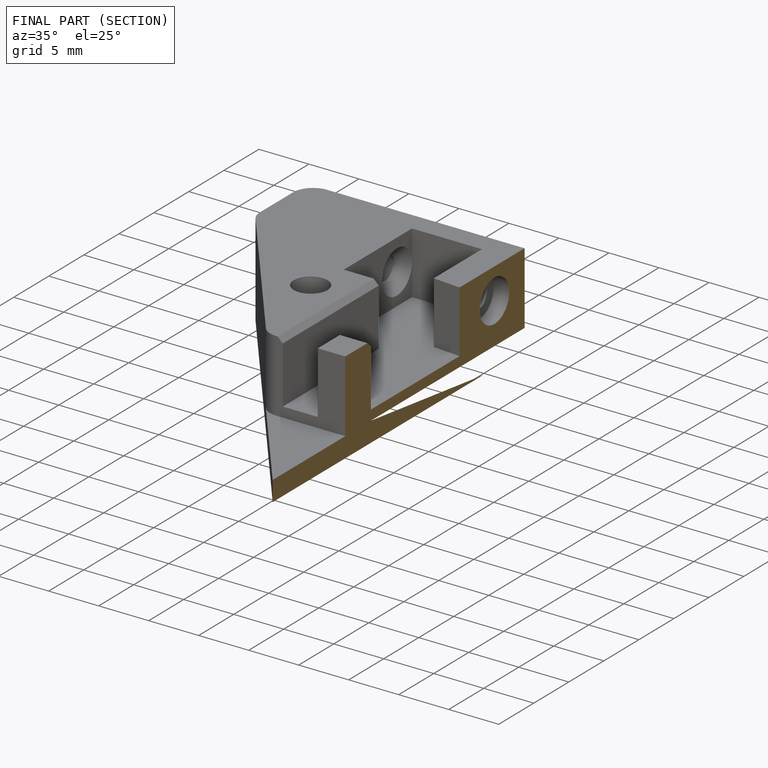
[diagram: finished part — half-section view (interior)]
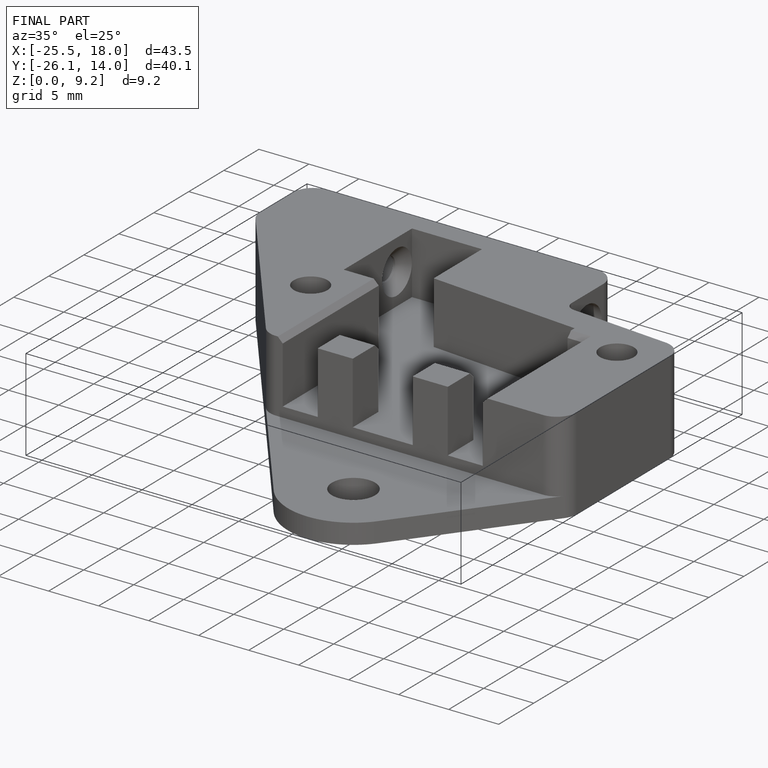
[diagram: finished part — iso view with bounding-box wireframe]
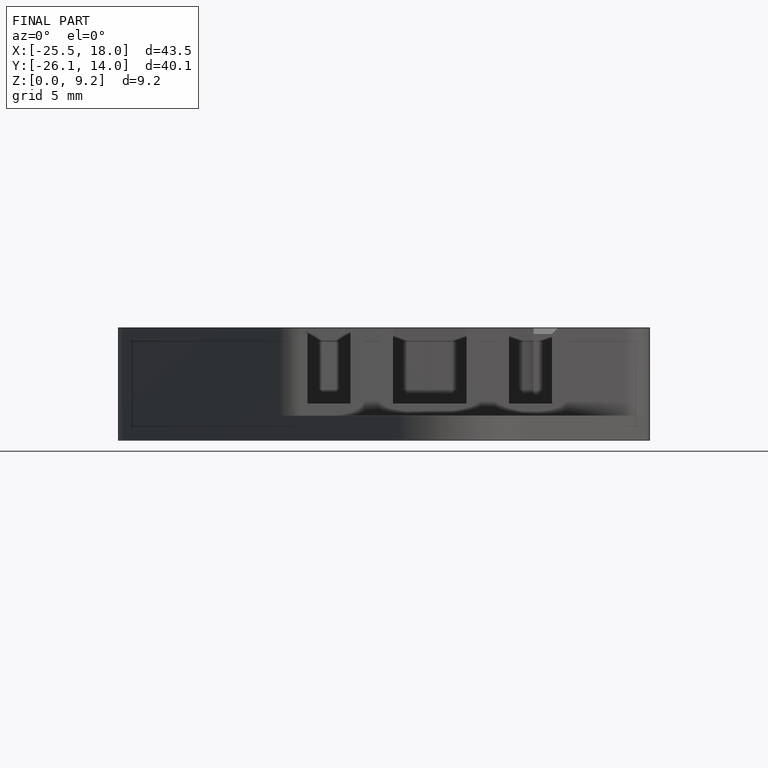
[diagram: finished part — front view with bounding-box wireframe]
